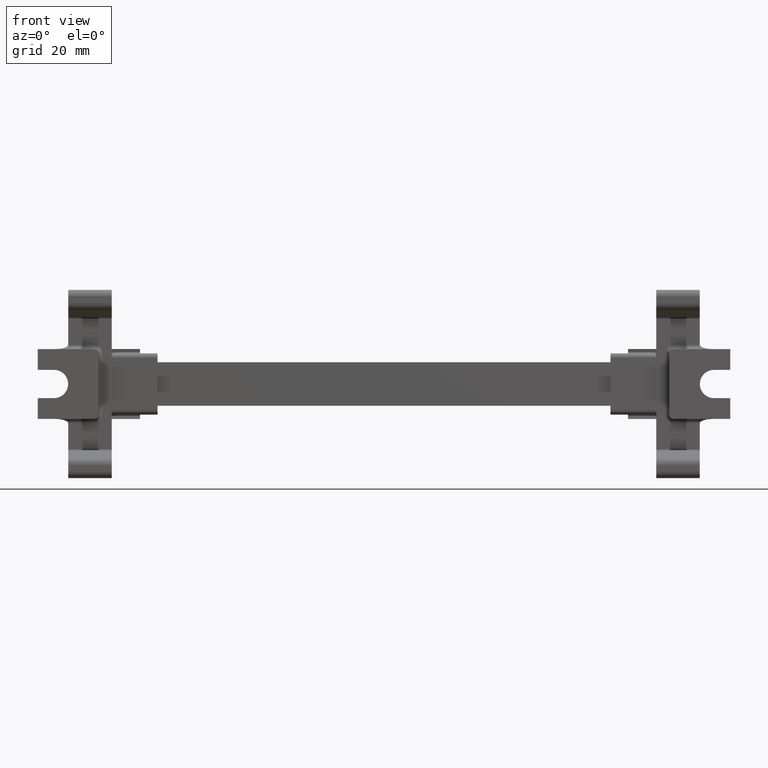
[diagram: clean part render]
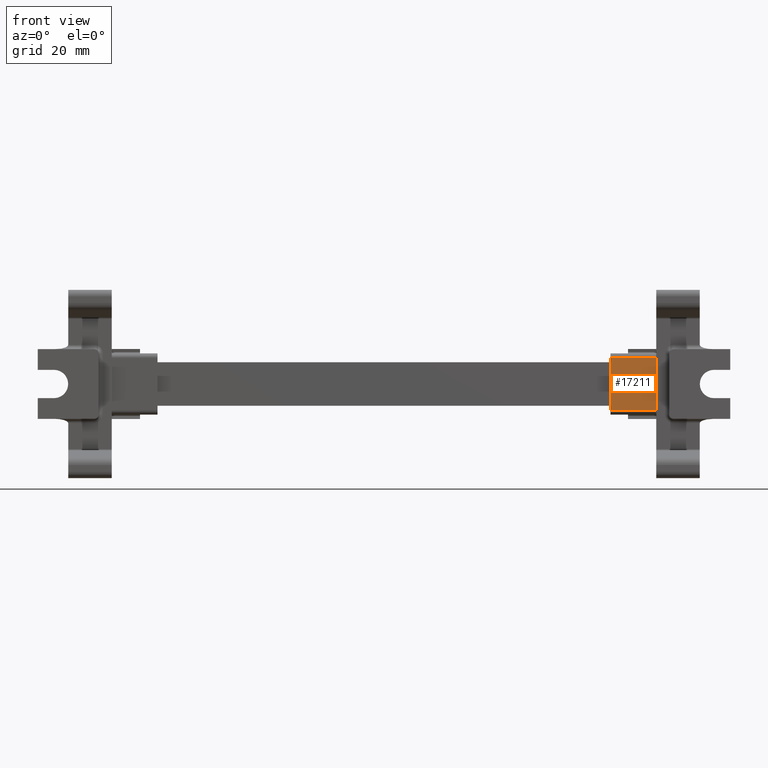
[diagram: same view with one face highlighted and labeled with its STEP entity id]
A machine part, front view. The second image highlights one B-rep face of the part: STEP entity #17211.
In plain terms, the highlighted planar face has unit normal (0, -1, 0).
Its self-contained STEP definition (entity closure, byte-faithful):
#253 = AXIS2_PLACEMENT_3D ( 'NONE', #16634, #16642, #16646 ) ;
#1827 = LINE ( 'NONE', #1843, #10221 ) ;
#1843 = CARTESIAN_POINT ( 'NONE',  ( 24.55792395263702200, 44.96882648293038200, 57.81335666716632500 ) ) ;
#1866 = DIRECTION ( 'NONE',  ( 3.507724761411180300E-015, 0.0000000000000000000, -1.000000000000000000 ) ) ;
#3984 = CARTESIAN_POINT ( 'NONE',  ( 35.04730230417590100, 44.96882648293040300, 31.03904998369123200 ) ) ;
#3994 = DIRECTION ( 'NONE',  ( -2.635885143913346800E-043, 1.373825018767020900E-028, 1.000000000000000000 ) ) ;
#4002 = LINE ( 'NONE', #3984, #10105 ) ;
#4297 = EDGE_LOOP ( 'NONE', ( #8794, #8744, #8766, #8841 ) ) ;
#5939 = LINE ( 'NONE', #5981, #9909 ) ;
#5981 = CARTESIAN_POINT ( 'NONE',  ( 24.55792395263712500, 44.96882648293038200, 32.03904998369078800 ) ) ;
#5996 = LINE ( 'NONE', #5997, #9920 ) ;
#5997 = CARTESIAN_POINT ( 'NONE',  ( 24.55792395263712500, 44.96882648293038200, 44.11624998369229900 ) ) ;
#5998 = DIRECTION ( 'NONE',  ( -1.000000000000000000, -1.918646922210659900E-015, -0.0000000000000000000 ) ) ;
#6010 = DIRECTION ( 'NONE',  ( 1.000000000000000000, 1.918646922210659900E-015, 0.0000000000000000000 ) ) ;
#8744 = ORIENTED_EDGE ( 'NONE', *, *, #13629, .T. ) ;
#8766 = ORIENTED_EDGE ( 'NONE', *, *, #14730, .T. ) ;
#8794 = ORIENTED_EDGE ( 'NONE', *, *, #14738, .T. ) ;
#8841 = ORIENTED_EDGE ( 'NONE', *, *, #13596, .T. ) ;
#9909 = VECTOR ( 'NONE', #6010, 1000.000000000000000 ) ;
#9920 = VECTOR ( 'NONE', #5998, 1000.000000000000000 ) ;
#10105 = VECTOR ( 'NONE', #3994, 1000.000000000000000 ) ;
#10221 = VECTOR ( 'NONE', #1866, 1000.000000000000000 ) ;
#13596 = EDGE_CURVE ( 'NONE', #18427, #18412, #4002, .T. ) ;
#13629 = EDGE_CURVE ( 'NONE', #18424, #18510, #1827, .T. ) ;
#14730 = EDGE_CURVE ( 'NONE', #18510, #18427, #5939, .T. ) ;
#14738 = EDGE_CURVE ( 'NONE', #18412, #18424, #5996, .T. ) ;
#16619 = PLANE ( 'NONE',  #253 ) ;
#16632 = FACE_OUTER_BOUND ( 'NONE', #4297, .T. ) ;
#16634 = CARTESIAN_POINT ( 'NONE',  ( 24.55792395263712500, 44.96882648293038200, 31.03904998369123200 ) ) ;
#16642 = DIRECTION ( 'NONE',  ( 1.918646922210659900E-015, -1.000000000000000000, 1.373825018767020900E-028 ) ) ;
#16646 = DIRECTION ( 'NONE',  ( 1.000000000000000000, 1.918646922210659900E-015, 0.0000000000000000000 ) ) ;
#17211 = ADVANCED_FACE ( 'NONE', ( #16632 ), #16619, .T. ) ;
#17929 = CARTESIAN_POINT ( 'NONE',  ( 35.04730230417589400, 44.96882648293040300, 44.11624998369232000 ) ) ;
#17942 = CARTESIAN_POINT ( 'NONE',  ( 24.55792395263708300, 44.96882648293038200, 44.11624998369230600 ) ) ;
#17943 = CARTESIAN_POINT ( 'NONE',  ( 35.04730230417592200, 44.96882648293040300, 32.03904998369081600 ) ) ;
#17968 = CARTESIAN_POINT ( 'NONE',  ( 24.55792395263711800, 44.96882648293038200, 32.03904998369079500 ) ) ;
#18412 = VERTEX_POINT ( 'NONE', #17929 ) ;
#18424 = VERTEX_POINT ( 'NONE', #17942 ) ;
#18427 = VERTEX_POINT ( 'NONE', #17943 ) ;
#18510 = VERTEX_POINT ( 'NONE', #17968 ) ;